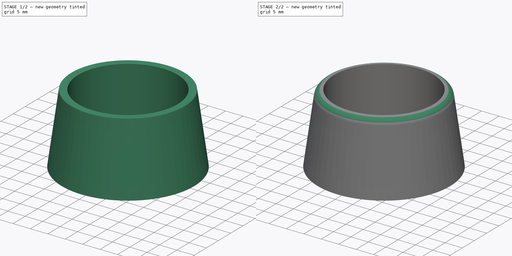
[diagram: build sequence overview — one tinted view per stage of 2, left to right]
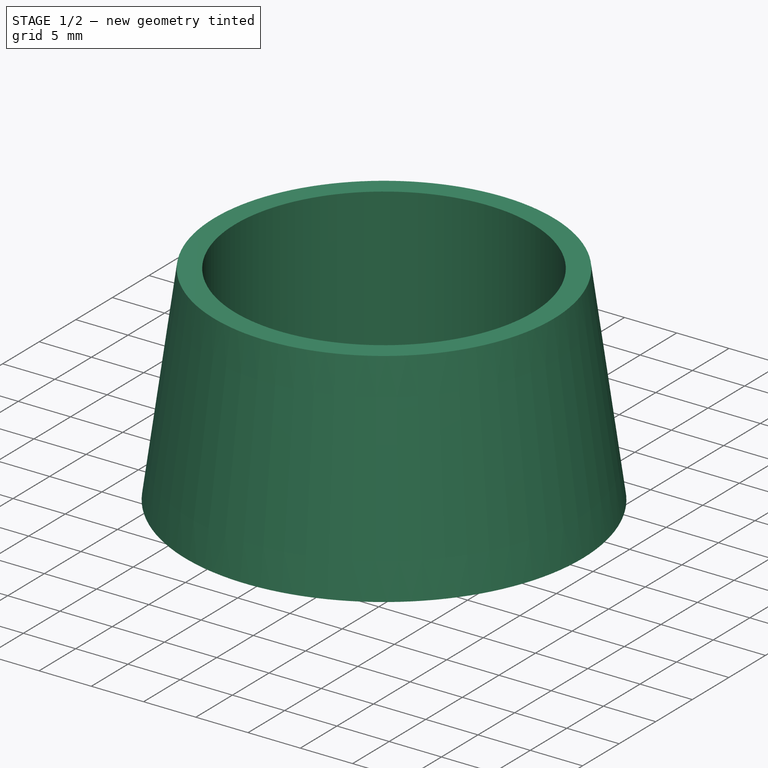
[diagram: stage 1 of 2 — iso view after this stage's code; geometry added in this stage tinted green]
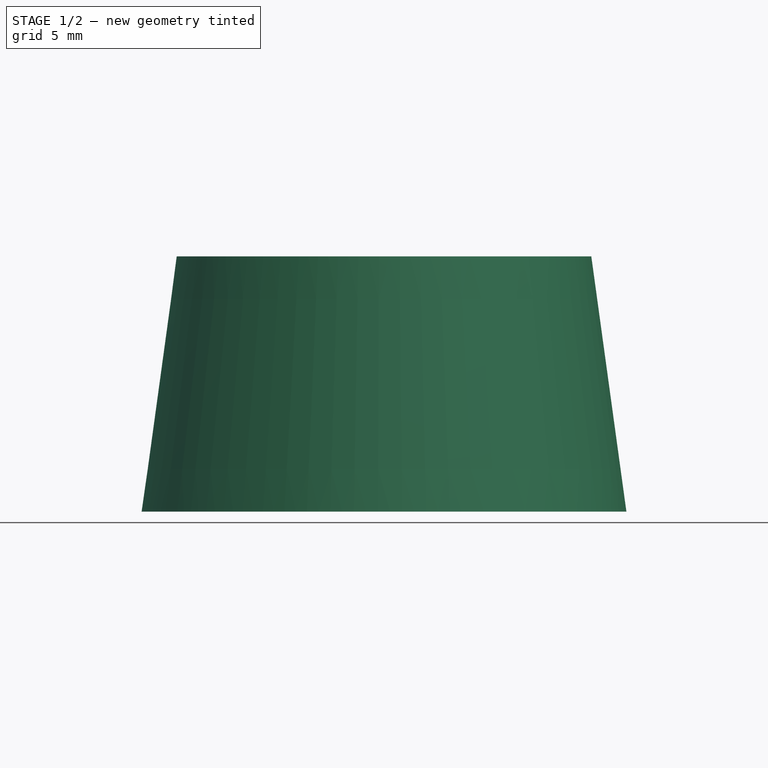
[diagram: stage 1 of 2 — front view after this stage's code; geometry added in this stage tinted green]
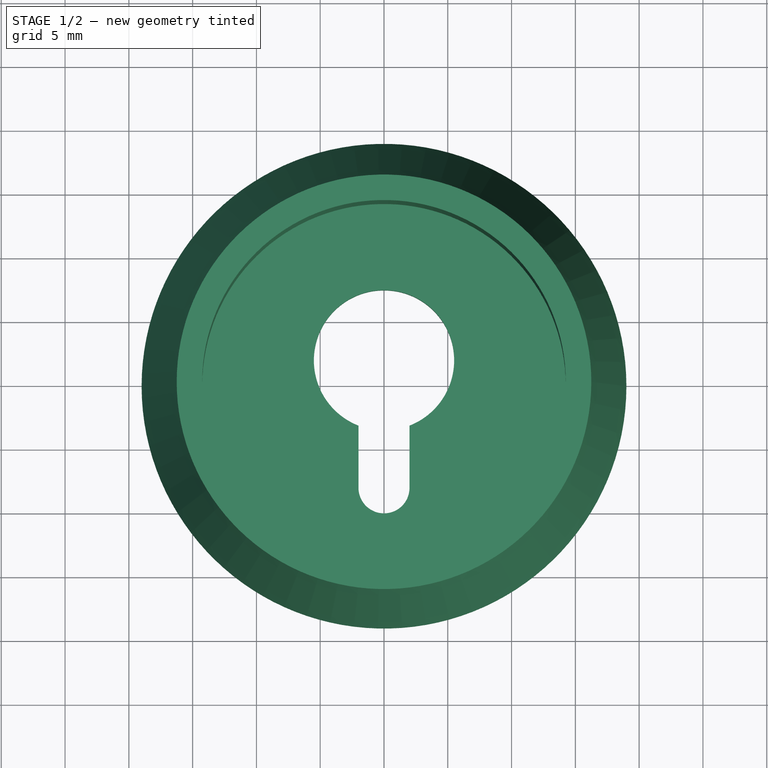
[diagram: stage 1 of 2 — top view after this stage's code; geometry added in this stage tinted green]
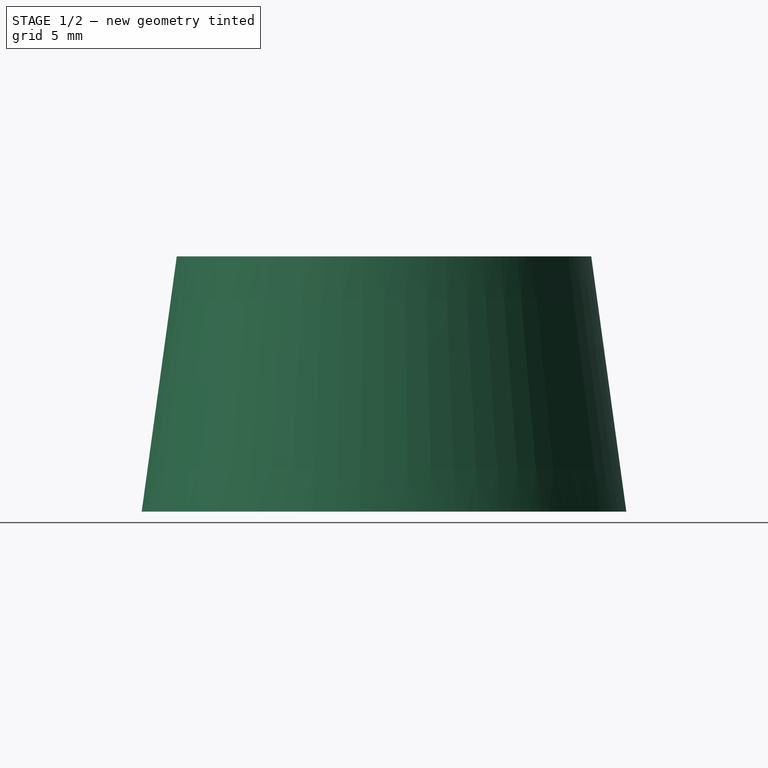
[diagram: stage 1 of 2 — right view after this stage's code; geometry added in this stage tinted green]
FCSTD DOCUMENT  (FreeCAD 1.0R39109 (Git))
Label: Direct Wall Mount
License: All rights reserved
LicenseURL: http://en.wikipedia.org/wiki/All_rights_reserved
objects: Sketcher::SketchObject×2, Spreadsheet::Sheet×1, PartDesign::Revolution×1, PartDesign::Pocket×1, PartDesign::Fillet×1, PartDesign::Chamfer×1, PartDesign::Body×1
note: 17 computed .brp shape members not serialized (recipe doc carries the construction recipe); baked Part::Feature solids carry a one-line shape summary decoded from their .brp

FEATURE [Sketcher::SketchObject] Sketch
  ArcFitTolerance = 1e-06
  AttachmentSupport = -> [XZ_Plane]
  FullyConstrained = true
  MakeInternals = false
  MapMode = 5
  Placement = pos=(0,0,0) rot=(1,0,0;1.5708rad)
  expr: Constraints[10] = Spreadsheet.rod_thickness / 2
  expr: Constraints[11] = Spreadsheet.outer_thickness / 2
  expr: Constraints[12] = Spreadsheet.base_thickness
  expr: Constraints[13] = Spreadsheet.overall_length
  expr: Constraints[14] = Spreadsheet.base_width / 2
  sketch-geometry (6):
    g0: LineSegment StartX=0 StartY=3e-16 StartZ=0 EndX=0 EndY=2 EndZ=0
    g1: LineSegment StartX=0 StartY=2 StartZ=0 EndX=14.25 EndY=2 EndZ=0
    g2: LineSegment StartX=14.25 StartY=2 StartZ=0 EndX=14.25 EndY=20 EndZ=0
    g3: LineSegment StartX=14.25 StartY=20 StartZ=0 EndX=16.25 EndY=20 EndZ=0
    g4: LineSegment StartX=19 StartY=3e-16 StartZ=0 EndX=0 EndY=3e-16 EndZ=0
    g5: LineSegment StartX=16.25 StartY=20 StartZ=0 EndX=19 EndY=3e-16 EndZ=0
  constraints (17):
    c: Coincident(g0,g-1)
    c: Coincident(g1,g0)
    c: Horizontal(g1)
    c: Coincident(g2,g1)
    c: Vertical(g2)
    c: Coincident(g3,g2)
    c: Horizontal(g3)
    c: Coincident(g4,g0)
    c: Horizontal(g4)
    c: Vertical(g0)
    c: DistanceX(g1,g1) = 14.25
    c: DistanceX(g0,g3) = 16.25
    c: DistanceY(g0,g0) = 2
    c: DistanceY(g4,g3) = 20
    c: DistanceX(g0,g4) = 19
    c: Coincident(g5,g3)
    c: Coincident(g5,g4)
FEATURE [Spreadsheet::Sheet] Spreadsheet
  cells = A1='rod_thickness; B1(rod_thickness)=28.5; A2='outer_thickness; B2(outer_thickness)=32.5; A3='base_thickness; B3(base_thickness)=2; A4='overall_length; B4(overall_length)=20; A5='hole_diameter; B5(hole_diameter)=4; A6='base_width; B6(base_width)=38; A7='edge_fillet_radius; B7(edge_fillet_radius)=2; A8='screw_slot_offset; B8(screw_slot_offset)=8; A9='screw_slot_length; B9(screw_slot_length)=10; A10='screw_head_diameter; B10(screw_head_diameter)=11; A11='screw_head_indentation_depth; B11(screw_head_indentation_depth)=1.5; A12='screw_head_indentation_width; B12(screw_head_indentation_width)=1
FEATURE [PartDesign::Revolution] Revolution
  Angle = 360
  Angle2 = 60
  Axis = (0,2e-16,1)
  Base = (0,0,0)
  Placement = pos=(0,0,0) rot=(1,0,0;1.5708rad)
  Profile = -> Sketch
  ReferenceAxis = -> Sketch [V_Axis]
  Reversed = true
  Suppressed = false
  Type = 0
FEATURE [Sketcher::SketchObject] Sketch001
  ArcFitTolerance = 1e-06
  AttachmentSupport = -> [Revolution]
  FullyConstrained = true
  MakeInternals = false
  MapMode = 5
  Placement = pos=(0,4e-16,2) rot=(0,0,1;3.14159rad)
  expr: Constraints[10] = Spreadsheet.screw_head_diameter
  expr: Constraints[11] = Spreadsheet.screw_slot_offset
  expr: Constraints[5] = Spreadsheet.hole_diameter
  expr: Constraints[8] = Spreadsheet.screw_slot_length
  sketch-geometry (5):
    g0: ArcOfCircle CenterX=0 CenterY=8 CenterZ=0 NormalX=0 NormalY=0 NormalZ=1 AngleXU=0 Radius=2 StartAngle=-4.485e-13 EndAngle=3.14159
    g1: ArcOfCircle CenterX=0 CenterY=-2 CenterZ=0 NormalX=0 NormalY=0 NormalZ=1 AngleXU=0 Radius=2 StartAngle=3.14159 EndAngle=6.28319
    g2: LineSegment StartX=2 StartY=8 StartZ=0 EndX=2 EndY=-2 EndZ=0
    g3: LineSegment StartX=-2 StartY=8 StartZ=0 EndX=-2 EndY=-2 EndZ=0
    g4: Circle CenterX=0 CenterY=-2 CenterZ=0 NormalX=0 NormalY=0 NormalZ=1 AngleXU=0 Radius=5.5
  constraints (12):
    c: Tangent(g0,g2) = 1.5708
    c: Tangent(g0,g3) = -1.5708
    c: Tangent(g1,g2) = 1.5708
    c: Tangent(g1,g3) = -1.5708
    c: Equal(g0,g1)
    c: Diameter(g0) = 4
    c: Vertical(g0,g1)
    c: Vertical(g-1,g0)
    c: DistanceY(g2,g2) = 10
    c: Coincident(g4,g1)
    c: Diameter(g4) = 11
    c: DistanceY(g-1,g0) = 8
FEATURE [PartDesign::Pocket] Pocket
  BaseFeature = -> Revolution
  Direction = (0,0,-1)
  Length = 5
  Length2 = 5
  Placement = pos=(0,0,0) rot=(1,0,0;1.5708rad)
  Profile = -> Sketch001
  ReferenceAxis = -> Sketch001 [N_Axis]
  Suppressed = false
  Type = 1
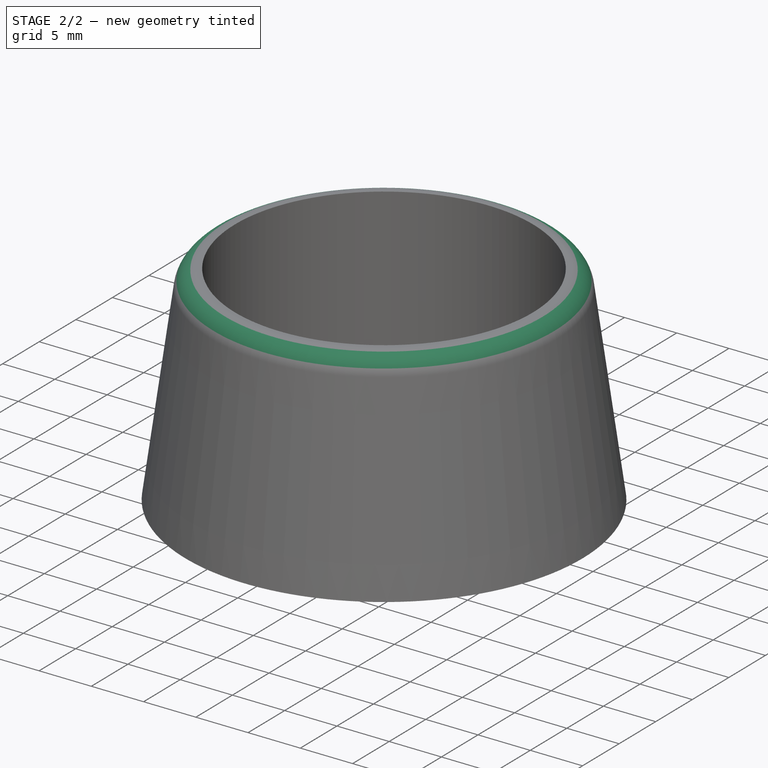
[diagram: stage 2 of 2 — iso view after this stage's code; geometry added in this stage tinted green]
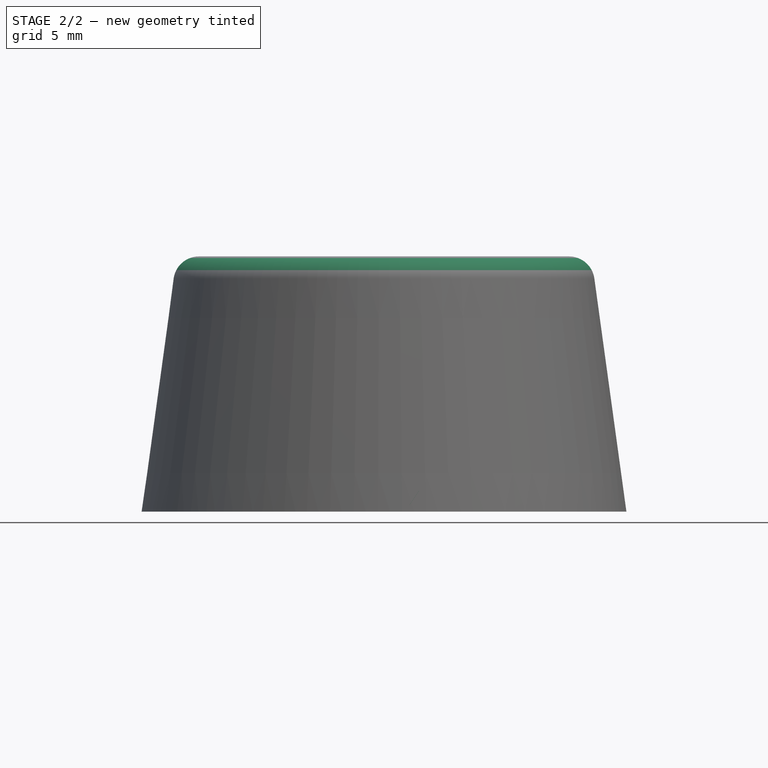
[diagram: stage 2 of 2 — front view after this stage's code; geometry added in this stage tinted green]
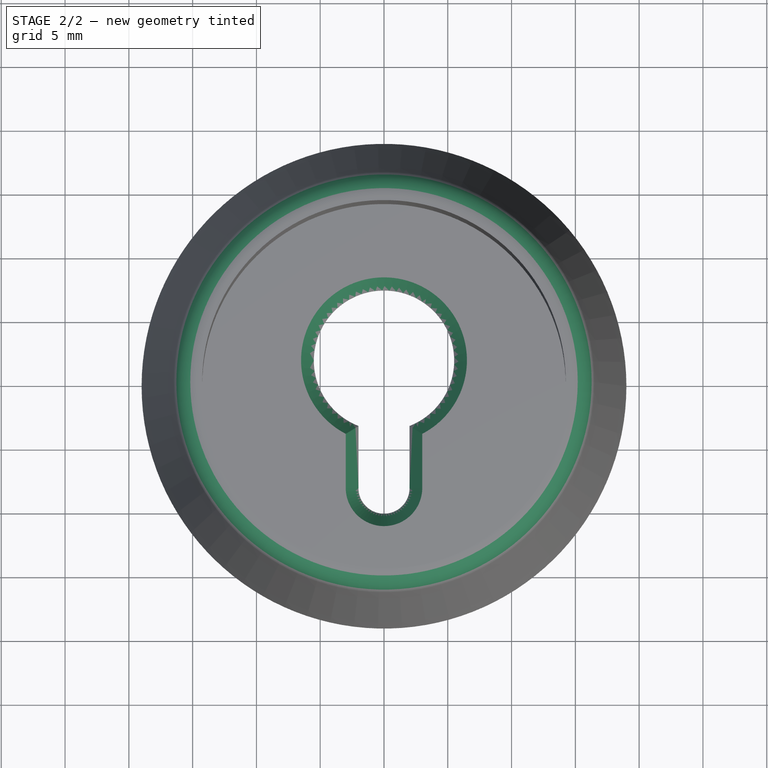
[diagram: stage 2 of 2 — top view after this stage's code; geometry added in this stage tinted green]
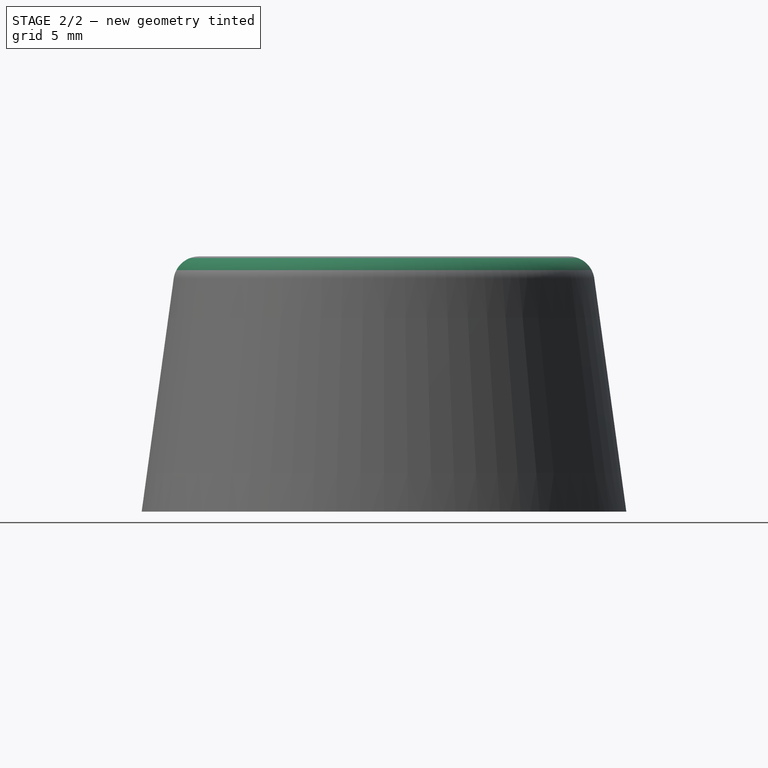
[diagram: stage 2 of 2 — right view after this stage's code; geometry added in this stage tinted green]
FEATURE [PartDesign::Fillet] Fillet
  Base = -> Pocket [Edge19]
  BaseFeature = -> Pocket
  Placement = pos=(0,0,0) rot=(1,0,0;1.5708rad)
  Radius = 2
  SupportTransform = false
  Suppressed = false
  UseAllEdges = false
  expr: Radius = Spreadsheet.edge_fillet_radius
FEATURE [PartDesign::Chamfer] Chamfer
  Angle = 45
  Base = -> Fillet [Edge9,Edge13,Edge12,Edge11,Edge10]
  BaseFeature = -> Fillet
  ChamferType = 1
  FlipDirection = false
  Placement = pos=(0,0,0) rot=(1,0,0;1.5708rad)
  Size = 1
  Size2 = 1.5
  SupportTransform = false
  Suppressed = false
  UseAllEdges = false
  expr: Size = Spreadsheet.screw_head_indentation_width
  expr: Size2 = Spreadsheet.screw_head_indentation_depth
FEATURE [PartDesign::Body] Body
  AllowCompound = false
  Group = -> [Sketch,Revolution,Sketch001,Pocket,Fillet,Chamfer]
  Origin = -> Origin
  Tip = -> Chamfer
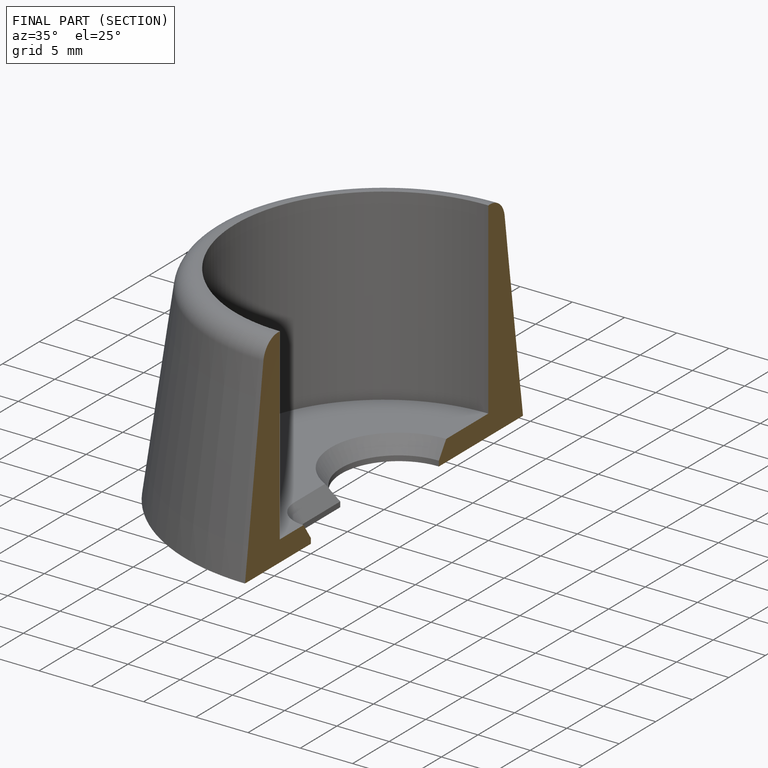
[diagram: finished part — half-section view (interior)]
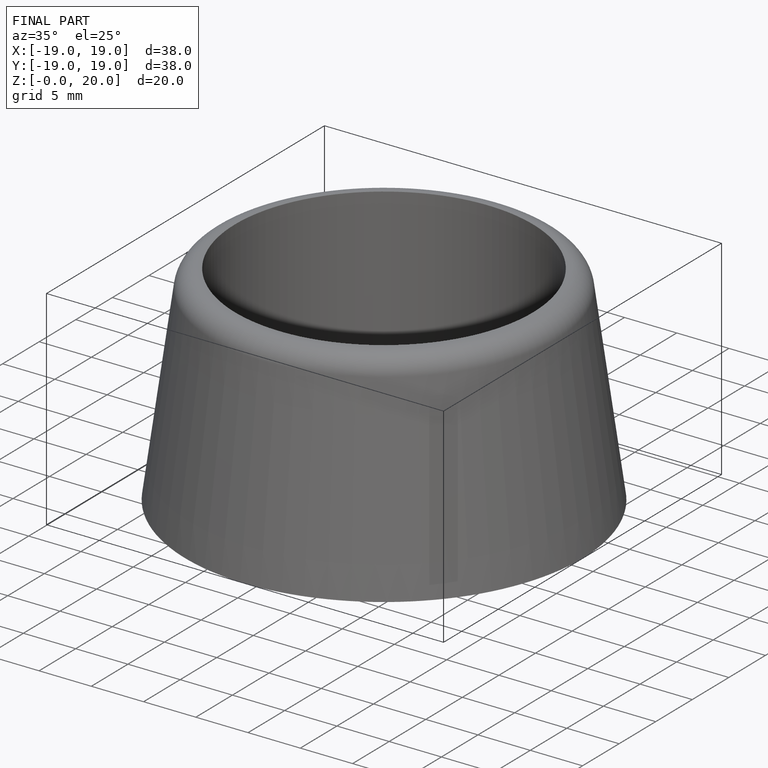
[diagram: finished part — iso view with bounding-box wireframe]
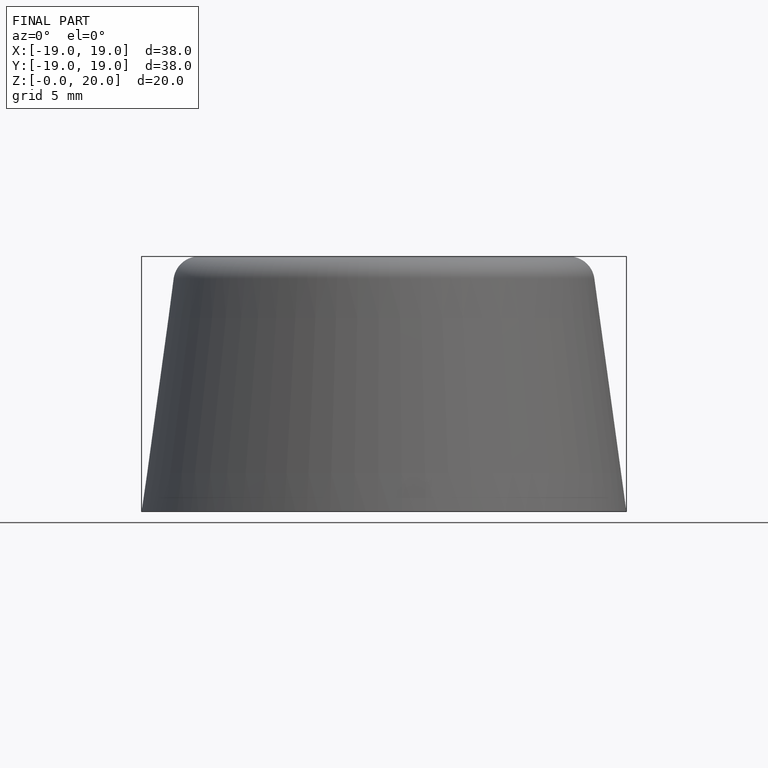
[diagram: finished part — front view with bounding-box wireframe]
